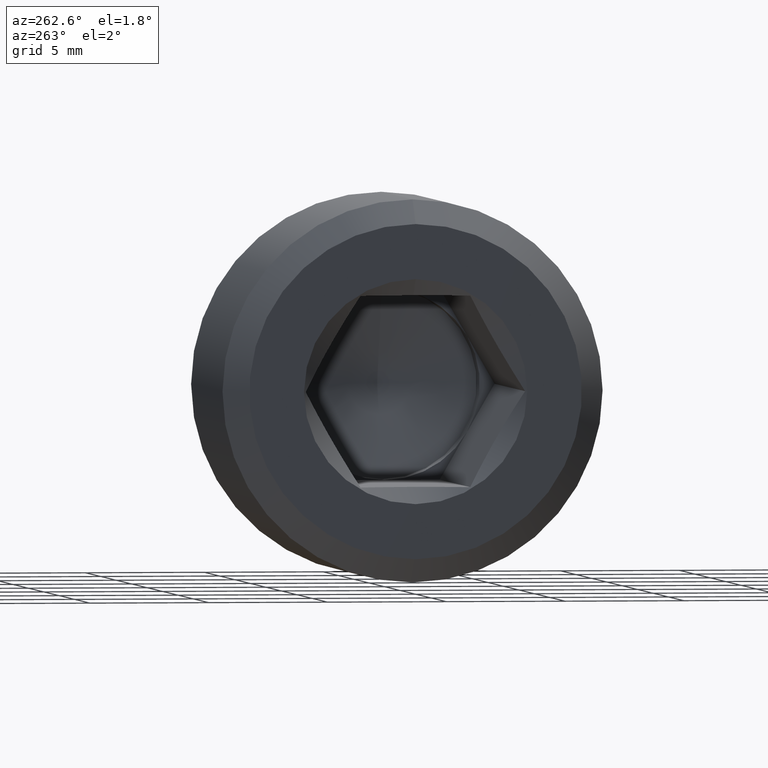
[diagram: clean part render]
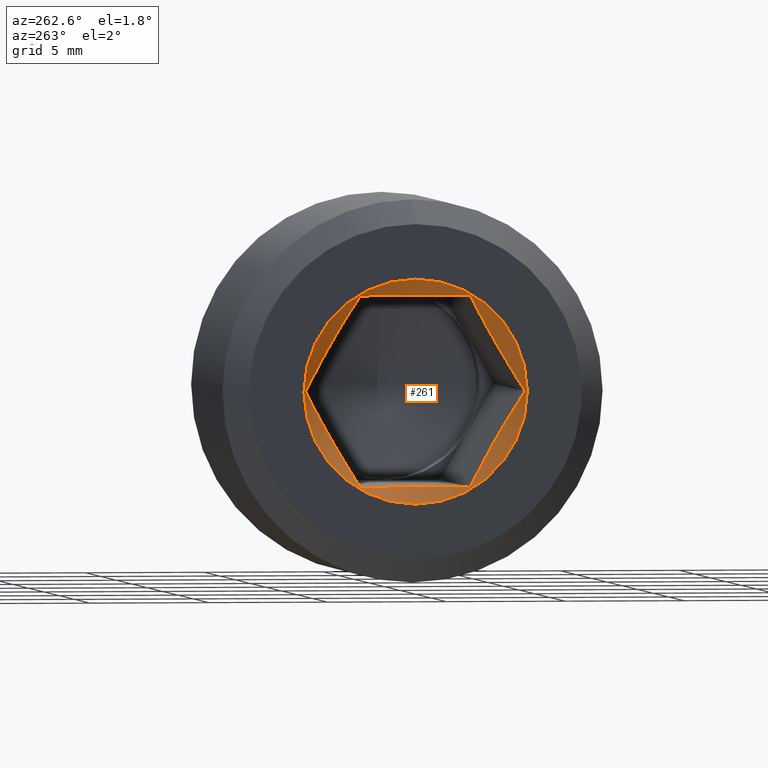
[diagram: same view with one face highlighted and labeled with its STEP entity id]
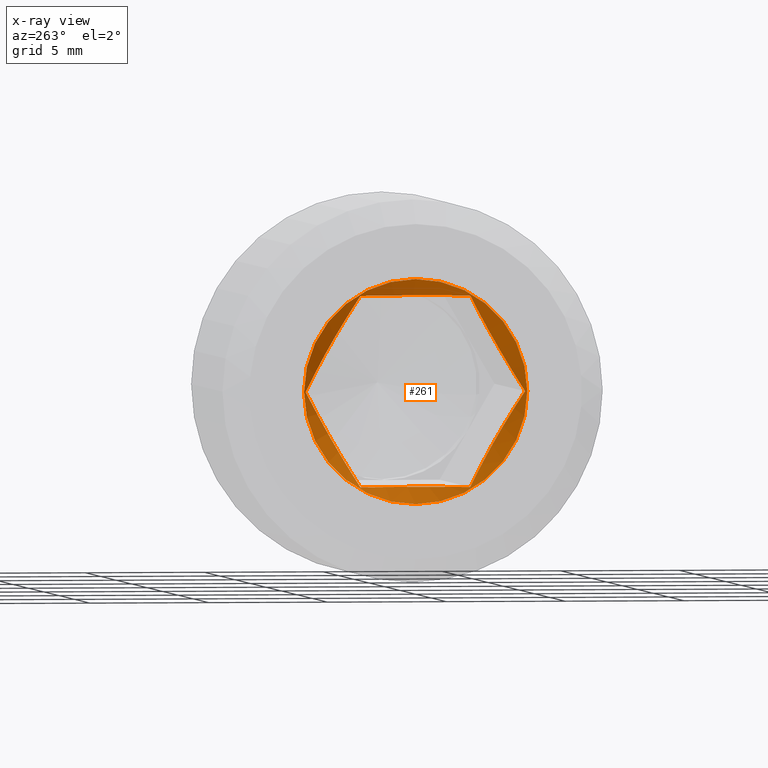
[diagram: x-ray of the same camera — body ghosted, the highlighted face saturated]
A machine part, auxiliary view. The second image highlights one B-rep face of the part: STEP entity #261.
The next image is the same camera in x-ray: the body ghosted, the highlighted face saturated — about 0% of this face is hidden behind the body in this view.
In plain terms, the highlighted conical surface has half-angle 45 deg.
Its self-contained STEP definition (entity closure, byte-faithful):
#3 = EDGE_CURVE ( 'NONE', #145, #49, #368, .T. ) ;
#7 = CARTESIAN_POINT ( 'NONE',  ( 0.2538734953905270600, 1.948652659049114000, 4.000000000000002700 ) ) ;
#11 = CARTESIAN_POINT ( 'NONE',  ( 0.6844111899594741400, -0.4041879333743195200, -4.000000000000000000 ) ) ;
#16 = CARTESIAN_POINT ( 'NONE',  ( 0.2616367096296722800, -2.489839939905183800, -3.687470721369985300 ) ) ;
#22 = CARTESIAN_POINT ( 'NONE',  ( 0.4150543676130452600, 4.253854274071435300, -0.6321082693142530100 ) ) ;
#27 = ORIENTED_EDGE ( 'NONE', *, *, #59, .T. ) ;
#36 = B_SPLINE_CURVE_WITH_KNOTS ( 'NONE', 3,
 ( #236, #141, #186, #283, #500, #497, #594, #550, #105, #107, #340, #7, #553, #555 ),
 .UNSPECIFIED., .F., .F.,
 ( 4, 2, 2, 2, 2, 2, 4 ),
 ( 0.003041011842141596200, 0.004238236106116807400, 0.004836848238104413300, 0.005435460370092019100, 0.006632684634067230800, 0.007231296766054835800, 0.007829908898042440800 ),
 .UNSPECIFIED. ) ;
#49 = VERTEX_POINT ( 'NONE', #135 ) ;
#53 = DIRECTION ( 'NONE',  ( -1.000000000000000000, -0.0000000000000000000, -0.0000000000000000000 ) ) ;
#57 = CARTESIAN_POINT ( 'NONE',  ( 0.08119784648299269200, -2.309401076758504700, -4.000000000000000900 ) ) ;
#59 = EDGE_CURVE ( 'NONE', #483, #483, #149, .T. ) ;
#60 = CARTESIAN_POINT ( 'NONE',  ( 0.4174005900006742000, -1.573891664302362800, -4.000000000000000900 ) ) ;
#62 = CARTESIAN_POINT ( 'NONE',  ( 0.6231881700867339900, 3.869969018718635700, -1.297017035861854000 ) ) ;
#65 = ORIENTED_EDGE ( 'NONE', *, *, #3, .F. ) ;
#69 = CARTESIAN_POINT ( 'NONE',  ( 0.2616367096296723900, 2.489839939905184700, 3.687470721369984000 ) ) ;
#71 = FACE_BOUND ( 'NONE', #81, .T. ) ;
#72 = CARTESIAN_POINT ( 'NONE',  ( 0.5794568686004361000, 3.967190869616748800, -1.128623850500434900 ) ) ;
#80 = CARTESIAN_POINT ( 'NONE',  ( 0.7008480878080847200, 3.266748298573009600, -2.341825971332365700 ) ) ;
#81 = EDGE_LOOP ( 'NONE', ( #159, #409, #571, #117, #234, #65 ) ) ;
#82 = CARTESIAN_POINT ( 'NONE',  ( 0.08119784648299269200, 4.618802153517007600, -1.734723475976807100E-015 ) ) ;
#85 = DIRECTION ( 'NONE',  ( -1.000000000000000000, -0.0000000000000000000, -0.0000000000000000000 ) ) ;
#100 = CARTESIAN_POINT ( 'NONE',  ( 0.0000000000000000000, 0.0000000000000000000, 4.700000000000000200 ) ) ;
#105 = CARTESIAN_POINT ( 'NONE',  ( 0.6372498205524092000, 0.8022323920327941700, 4.000000000000000900 ) ) ;
#107 = CARTESIAN_POINT ( 'NONE',  ( 0.4717933530190095400, 1.382801828582293200, 4.000000000000001800 ) ) ;
#110 = CARTESIAN_POINT ( 'NONE',  ( 0.2603953882378624600, -1.951005993248784900, -4.000000000000000900 ) ) ;
#113 = AXIS2_PLACEMENT_3D ( 'NONE', #446, #53, #201 ) ;
#114 = CARTESIAN_POINT ( 'NONE',  ( 0.4150543676130462600, 2.674348956204075600, 3.367891730685749000 ) ) ;
#115 = CARTESIAN_POINT ( 'NONE',  ( 0.6397945956621468000, -3.859617540109126800, -1.314946322746983100 ) ) ;
#117 = ORIENTED_EDGE ( 'NONE', *, *, #306, .F. ) ;
#119 = B_SPLINE_CURVE_WITH_KNOTS ( 'NONE', 3,
 ( #606, #16, #164, #215, #610, #402, #516, #301, #115, #163, #160, #460 ),
 .UNSPECIFIED., .F., .F.,
 ( 4, 2, 2, 2, 2, 4 ),
 ( 2.544326305570727600E-007, 0.001193013274720901800, 0.001789392695766074400, 0.002385772116811247300, 0.003578530958901591700, 0.004771289800991936600 ),
 .UNSPECIFIED. ) ;
#121 = CARTESIAN_POINT ( 'NONE',  ( 0.6231881700867349900, 3.058234211556876100, 2.702982964138146600 ) ) ;
#122 = CARTESIAN_POINT ( 'NONE',  ( 0.2616367096296720600, -4.438363290370327600, 0.3125292786300177300 ) ) ;
#126 = CARTESIAN_POINT ( 'NONE',  ( 0.4150543676130445400, -4.253854274071435300, 0.6321082693142519000 ) ) ;
#133 = DIRECTION ( 'NONE',  ( 0.0000000000000000000, 0.0000000000000000000, 1.000000000000000000 ) ) ;
#135 = CARTESIAN_POINT ( 'NONE',  ( 0.08119784648299269200, 4.618802153517007600, -1.734723475976807100E-015 ) ) ;
#137 = CARTESIAN_POINT ( 'NONE',  ( 0.6833601162637191800, 3.671414576779203500, -1.640923417369437400 ) ) ;
#139 = EDGE_LOOP ( 'NONE', ( #27 ) ) ;
#141 = CARTESIAN_POINT ( 'NONE',  ( 0.2603953882378634600, -1.951005993248783300, 4.000000000000000900 ) ) ;
#145 = VERTEX_POINT ( 'NONE', #426 ) ;
#149 = CIRCLE ( 'NONE', #486, 4.700000000000000200 ) ;
#155 = CARTESIAN_POINT ( 'NONE',  ( 0.4044273467006552200, 1.575166883349645700, -4.000000000000000900 ) ) ;
#159 = ORIENTED_EDGE ( 'NONE', *, *, #208, .F. ) ;
#160 = CARTESIAN_POINT ( 'NONE',  ( 0.2626996021475743200, -4.437300397852643700, -0.3143702624736273200 ) ) ;
#163 = CARTESIAN_POINT ( 'NONE',  ( 0.4183282770534254600, -4.250418377850120800, -0.6380594161391018900 ) ) ;
#164 = CARTESIAN_POINT ( 'NONE',  ( 0.4150543676130458700, -2.674348956204076100, -3.367891730685749900 ) ) ;
#169 = CARTESIAN_POINT ( 'NONE',  ( 0.5794568686004361000, -3.967190869616750600, 1.128623850500434700 ) ) ;
#172 = CARTESIAN_POINT ( 'NONE',  ( 0.6995623995302754400, -3.569155556774900700, 1.818041235549090300 ) ) ;
#186 = CARTESIAN_POINT ( 'NONE',  ( 0.4174005900006752500, -1.573891664302362400, 4.000000000000000000 ) ) ;
#200 = CARTESIAN_POINT ( 'NONE',  ( 0.7000649608719613500, -0.2016098453673461600, -4.000000000000000000 ) ) ;
#201 = DIRECTION ( 'NONE',  ( 0.0000000000000000000, 0.0000000000000000000, 1.000000000000000000 ) ) ;
#208 = EDGE_CURVE ( 'NONE', #447, #145, #36, .T. ) ;
#212 = FACE_OUTER_BOUND ( 'NONE', #139, .T. ) ;
#215 = CARTESIAN_POINT ( 'NONE',  ( 0.5794568686004372100, -2.961012360658761700, -2.871376149499566700 ) ) ;
#218 = CARTESIAN_POINT ( 'NONE',  ( 0.7008480878080849400, -3.266748298573010100, 2.341825971332366100 ) ) ;
#220 = CARTESIAN_POINT ( 'NONE',  ( 0.6397945956621470300, 3.068585690166383700, -2.685053677253018000 ) ) ;
#234 = ORIENTED_EDGE ( 'NONE', *, *, #434, .F. ) ;
#236 = CARTESIAN_POINT ( 'NONE',  ( 0.08119784648299342700, -2.309401076758504300, 4.000000000000000000 ) ) ;
#240 = CONICAL_SURFACE ( 'NONE', #113, 4.700000000000000200, 0.7853981633974482800 ) ;
#248 = CARTESIAN_POINT ( 'NONE',  ( 0.08119784648299306600, 2.309401076758503800, -4.000000000000000900 ) ) ;
#260 = CARTESIAN_POINT ( 'NONE',  ( 0.2616367096296725000, 4.438363290370329400, -0.3125292786300177800 ) ) ;
#261 = ADVANCED_FACE ( 'NONE', ( #212, #71 ), #240, .F. ) ;
#274 = CARTESIAN_POINT ( 'NONE',  ( 0.6397945956621473600, -3.068585690166382800, 2.685053677253017100 ) ) ;
#275 = CARTESIAN_POINT ( 'NONE',  ( 0.6231881700867339900, -3.869969018718636200, 1.297017035861854200 ) ) ;
#280 = CARTESIAN_POINT ( 'NONE',  ( 0.6397945956621469100, 3.859617540109128200, 1.314946322746982400 ) ) ;
#283 = CARTESIAN_POINT ( 'NONE',  ( 0.5820503049828371600, -0.9958057073548140000, 4.000000000000000000 ) ) ;
#295 = CARTESIAN_POINT ( 'NONE',  ( 0.6253778157555294200, -0.8005999865725079700, -4.000000000000001800 ) ) ;
#301 = CARTESIAN_POINT ( 'NONE',  ( 0.7008480878080843900, -3.661454931702502700, -1.658174028667635600 ) ) ;
#306 = EDGE_CURVE ( 'NONE', #511, #579, #421, .T. ) ;
#307 = B_SPLINE_CURVE_WITH_KNOTS ( 'NONE', 3,
 ( #613, #260, #22, #72, #62, #137, #325, #80, #220, #573, #464, #620 ),
 .UNSPECIFIED., .F., .F.,
 ( 4, 2, 2, 2, 2, 4 ),
 ( 2.544326305577339700E-007, 0.001193013274720901800, 0.001789392695766073600, 0.002385772116811245600, 0.003578530958901589500, 0.004771289800991934800 ),
 .UNSPECIFIED. ) ;
#315 = CARTESIAN_POINT ( 'NONE',  ( 0.4183282770534252300, 4.250418377850120800, 0.6380594161391004400 ) ) ;
#321 = CARTESIAN_POINT ( 'NONE',  ( 0.08119784648299342700, -2.309401076758504300, 4.000000000000000000 ) ) ;
#325 = CARTESIAN_POINT ( 'NONE',  ( 0.6995623995302758800, 3.569155556774900700, -1.818041235549090300 ) ) ;
#327 = CARTESIAN_POINT ( 'NONE',  ( 0.08119784648299342700, -2.309401076758504300, 4.000000000000000000 ) ) ;
#338 = EDGE_CURVE ( 'NONE', #579, #512, #119, .T. ) ;
#340 = CARTESIAN_POINT ( 'NONE',  ( 0.4044273467006553300, 1.575166883349645700, 4.000000000000001800 ) ) ;
#346 = CARTESIAN_POINT ( 'NONE',  ( 0.1705244939631147500, 2.130747781798262100, -4.000000000000001800 ) ) ;
#349 = CARTESIAN_POINT ( 'NONE',  ( 0.6998694592878295100, 0.4070739401600504400, -4.000000000000000000 ) ) ;
#360 = CARTESIAN_POINT ( 'NONE',  ( 0.7008480878080847200, 3.661454931702501800, 1.658174028667633400 ) ) ;
#363 = CARTESIAN_POINT ( 'NONE',  ( 0.08119784648299269200, -4.618802153517007600, 7.047314121155778800E-016 ) ) ;
#366 = CARTESIAN_POINT ( 'NONE',  ( 0.0000000000000000000, 0.0000000000000000000, 0.0000000000000000000 ) ) ;
#368 = B_SPLINE_CURVE_WITH_KNOTS ( 'NONE', 3,
 ( #565, #69, #114, #411, #121, #558, #517, #360, #280, #315, #614, #82 ),
 .UNSPECIFIED., .F., .F.,
 ( 4, 2, 2, 2, 2, 4 ),
 ( 2.544326305578076700E-007, 0.001193013274720903300, 0.001789392695766076200, 0.002385772116811249000, 0.003578530958901593900, 0.004771289800991939200 ),
 .UNSPECIFIED. ) ;
#370 = CARTESIAN_POINT ( 'NONE',  ( 0.08119784648299306600, 2.309401076758503800, -4.000000000000000900 ) ) ;
#402 = CARTESIAN_POINT ( 'NONE',  ( 0.6833601162637197300, -3.256788653496307500, -2.359076582630565100 ) ) ;
#409 = ORIENTED_EDGE ( 'NONE', *, *, #435, .F. ) ;
#411 = CARTESIAN_POINT ( 'NONE',  ( 0.5794568686004374400, 2.961012360658761700, 2.871376149499565800 ) ) ;
#412 = CARTESIAN_POINT ( 'NONE',  ( 0.08119784648299269200, -4.618802153517007600, 7.047314121155778800E-016 ) ) ;
#421 = B_SPLINE_CURVE_WITH_KNOTS ( 'NONE', 3,
 ( #248, #346, #496, #155, #452, #596, #349, #200, #11, #295, #448, #60, #110, #57 ),
 .UNSPECIFIED., .F., .F.,
 ( 4, 2, 2, 2, 2, 2, 4 ),
 ( 0.002449405770502674200, 0.003047592430360879800, 0.003645779090219085700, 0.004842152409935497600, 0.005440339069793703600, 0.006038525729651908700, 0.007234899049368319700 ),
 .UNSPECIFIED. ) ;
#426 = CARTESIAN_POINT ( 'NONE',  ( 0.08119784648299269200, 2.309401076758504700, 4.000000000000000900 ) ) ;
#434 = EDGE_CURVE ( 'NONE', #49, #511, #307, .T. ) ;
#435 = EDGE_CURVE ( 'NONE', #512, #447, #505, .T. ) ;
#446 = CARTESIAN_POINT ( 'NONE',  ( 0.0000000000000000000, 0.0000000000000000000, 0.0000000000000000000 ) ) ;
#447 = VERTEX_POINT ( 'NONE', #321 ) ;
#448 = CARTESIAN_POINT ( 'NONE',  ( 0.5820503049828365000, -0.9958057073548136600, -4.000000000000000900 ) ) ;
#452 = CARTESIAN_POINT ( 'NONE',  ( 0.4717933530190091500, 1.382801828582293600, -4.000000000000000900 ) ) ;
#460 = CARTESIAN_POINT ( 'NONE',  ( 0.08119784648299269200, -4.618802153517007600, 7.047314121155778800E-016 ) ) ;
#464 = CARTESIAN_POINT ( 'NONE',  ( 0.2626996021475742600, 2.490902832422865900, -3.685629737526373800 ) ) ;
#474 = CARTESIAN_POINT ( 'NONE',  ( 0.2626996021475744800, -2.490902832422865500, 3.685629737526372000 ) ) ;
#483 = VERTEX_POINT ( 'NONE', #100 ) ;
#486 = AXIS2_PLACEMENT_3D ( 'NONE', #366, #85, #133 ) ;
#496 = CARTESIAN_POINT ( 'NONE',  ( 0.2538734953905270000, 1.948652659049113600, -4.000000000000000000 ) ) ;
#497 = CARTESIAN_POINT ( 'NONE',  ( 0.6844111899594754700, -0.4041879333743191300, 3.999999999999999100 ) ) ;
#500 = CARTESIAN_POINT ( 'NONE',  ( 0.6253778157555305300, -0.8005999865725074200, 4.000000000000000000 ) ) ;
#505 = B_SPLINE_CURVE_WITH_KNOTS ( 'NONE', 3,
 ( #412, #122, #126, #169, #275, #521, #172, #218, #274, #531, #474, #327 ),
 .UNSPECIFIED., .F., .F.,
 ( 4, 2, 2, 2, 2, 4 ),
 ( 2.544326305586614700E-007, 0.001193013274720902900, 0.001789392695766075100, 0.002385772116811247300, 0.003578530958901591700, 0.004771289800991935700 ),
 .UNSPECIFIED. ) ;
#511 = VERTEX_POINT ( 'NONE', #370 ) ;
#512 = VERTEX_POINT ( 'NONE', #363 ) ;
#516 = CARTESIAN_POINT ( 'NONE',  ( 0.6995623995302751000, -3.359047673500611600, -2.181958764450910900 ) ) ;
#517 = CARTESIAN_POINT ( 'NONE',  ( 0.6995623995302758800, 3.359047673500611200, 2.181958764450910400 ) ) ;
#521 = CARTESIAN_POINT ( 'NONE',  ( 0.6833601162637191800, -3.671414576779203500, 1.640923417369436700 ) ) ;
#531 = CARTESIAN_POINT ( 'NONE',  ( 0.4183282770534261200, -2.677784852425389800, 3.361940583860898000 ) ) ;
#550 = CARTESIAN_POINT ( 'NONE',  ( 0.6998694592878295100, 0.4070739401600519400, 4.000000000000000900 ) ) ;
#553 = CARTESIAN_POINT ( 'NONE',  ( 0.1705244939631147000, 2.130747781798262100, 4.000000000000002700 ) ) ;
#555 = CARTESIAN_POINT ( 'NONE',  ( 0.08119784648299269200, 2.309401076758504700, 4.000000000000000900 ) ) ;
#558 = CARTESIAN_POINT ( 'NONE',  ( 0.6833601162637197300, 3.256788653496309700, 2.359076582630562900 ) ) ;
#565 = CARTESIAN_POINT ( 'NONE',  ( 0.08119784648299269200, 2.309401076758504700, 4.000000000000000900 ) ) ;
#571 = ORIENTED_EDGE ( 'NONE', *, *, #338, .F. ) ;
#573 = CARTESIAN_POINT ( 'NONE',  ( 0.4183282770534257900, 2.677784852425391100, -3.361940583860899800 ) ) ;
#579 = VERTEX_POINT ( 'NONE', #631 ) ;
#594 = CARTESIAN_POINT ( 'NONE',  ( 0.7000649608719619100, -0.2016098453673450500, 4.000000000000001800 ) ) ;
#596 = CARTESIAN_POINT ( 'NONE',  ( 0.6372498205524088600, 0.8022323920327943900, -4.000000000000000900 ) ) ;
#606 = CARTESIAN_POINT ( 'NONE',  ( 0.08119784648299269200, -2.309401076758504700, -4.000000000000000900 ) ) ;
#610 = CARTESIAN_POINT ( 'NONE',  ( 0.6231881700867347700, -3.058234211556875700, -2.702982964138148000 ) ) ;
#613 = CARTESIAN_POINT ( 'NONE',  ( 0.08119784648299269200, 4.618802153517007600, -1.734723475976807100E-015 ) ) ;
#614 = CARTESIAN_POINT ( 'NONE',  ( 0.2626996021475742600, 4.437300397852644600, 0.3143702624736259800 ) ) ;
#620 = CARTESIAN_POINT ( 'NONE',  ( 0.08119784648299306600, 2.309401076758503800, -4.000000000000000900 ) ) ;
#631 = CARTESIAN_POINT ( 'NONE',  ( 0.08119784648299269200, -2.309401076758504700, -4.000000000000000900 ) ) ;